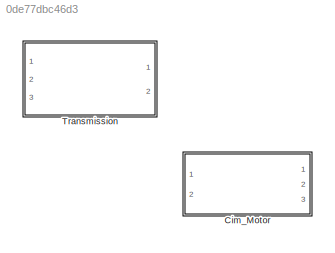
MODEL slx_0de77dbc46d3
KIND library
CONFIG AbsTol = auto
CONFIG EnableMultiTasking = off
CONFIG FixedStep = auto
CONFIG MaxStep = auto
CONFIG MinStep = auto
CONFIG RelTol = 1e-3
CONFIG SampleTimeConstraint = Unconstrained
CONFIG Solver = VariableStepAuto
CONFIG SolverName = VariableStepAuto
CONFIG StartTime = 0.0
CONFIG StopTime = 10.0
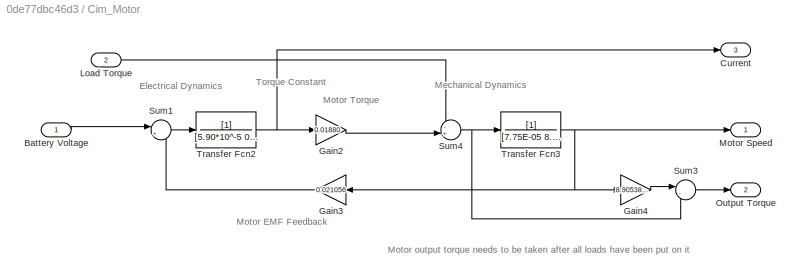
BLOCK [SubSystem] Cim_Motor
  Ports = [2, 3]
  RequestExecContextInheritance = off
BLOCK [Inport] Cim_Motor/Battery Voltage
  IconDisplay = Port number
BLOCK [Outport] Cim_Motor/Current
  IconDisplay = Port number
  Port = 3
BLOCK [Gain] Cim_Motor/Gain2
  Gain = 0.01880
  OutDataTypeStr = Inherit: Inherit via internal rule
  ParamDataTypeStr = Inherit: Inherit via internal rule
  SaturateOnIntegerOverflow = off
BLOCK [Gain] Cim_Motor/Gain3
  Gain = 0.021056
  OutDataTypeStr = Inherit: Inherit via internal rule
  ParamDataTypeStr = Inherit: Inherit via internal rule
  SaturateOnIntegerOverflow = off
BLOCK [Gain] Cim_Motor/Gain4
  Gain = 8.90538*10^-5
  OutDataTypeStr = Inherit: Inherit via internal rule
  ParamDataTypeStr = Inherit: Inherit via internal rule
  SaturateOnIntegerOverflow = off
BLOCK [Inport] Cim_Motor/Load Torque
  IconDisplay = Port number
  Port = 2
BLOCK [Outport] Cim_Motor/Motor Speed
  IconDisplay = Port number
BLOCK [Outport] Cim_Motor/Output Torque
  IconDisplay = Port number
  Port = 2
BLOCK [Sum] Cim_Motor/Sum1
  IconShape = round
  InputSameDT = off
  Inputs = |+-
  OutDataTypeStr = Inherit: Inherit via internal rule
  Ports = [2, 1]
  SaturateOnIntegerOverflow = off
BLOCK [Sum] Cim_Motor/Sum3
  IconShape = round
  InputSameDT = off
  Inputs = |-+
  OutDataTypeStr = Inherit: Inherit via internal rule
  Ports = [2, 1]
  SaturateOnIntegerOverflow = off
BLOCK [Sum] Cim_Motor/Sum4
  IconShape = round
  InputSameDT = off
  Inputs = -+|
  OutDataTypeStr = Inherit: Inherit via internal rule
  Ports = [2, 1]
  SaturateOnIntegerOverflow = off
BLOCK [TransferFcn] Cim_Motor/Transfer Fcn2
  Denominator = [5.90*10^-5 0.091565]
BLOCK [TransferFcn] Cim_Motor/Transfer Fcn3
  Denominator = [7.75E-05\n 8.90538*10^-5]
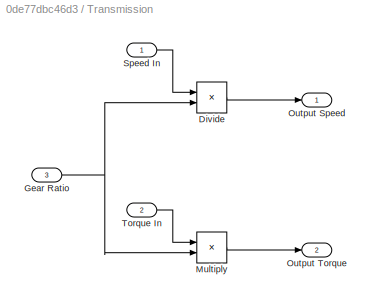
BLOCK [SubSystem] Transmission
  Ports = [3, 2]
  RequestExecContextInheritance = off
BLOCK [Product] Transmission/Divide
  InputSameDT = off
  Inputs = */
  OutDataTypeStr = Inherit: Inherit via internal rule
  Ports = [2, 1]
  RndMeth = Floor
  SaturateOnIntegerOverflow = off
BLOCK [Inport] Transmission/Gear Ratio
  IconDisplay = Port number
  Port = 3
BLOCK [Product] Transmission/Multiply
  InputSameDT = off
  OutDataTypeStr = Inherit: Inherit via internal rule
  Ports = [2, 1]
  RndMeth = Floor
  SaturateOnIntegerOverflow = off
BLOCK [Outport] Transmission/Output Speed 
  IconDisplay = Port number
BLOCK [Outport] Transmission/Output Torque 
  IconDisplay = Port number
  Port = 2
BLOCK [Inport] Transmission/Speed In 
  IconDisplay = Port number
BLOCK [Inport] Transmission/Torque In
  IconDisplay = Port number
  Port = 2
ANNOTATION Cim_Motor: Electrical Dynamics
ANNOTATION Cim_Motor: Mechanical Dynamics
ANNOTATION Cim_Motor: Motor EMF Feedback
ANNOTATION Cim_Motor: Motor Torque
ANNOTATION Cim_Motor: Motor output torque needs to be taken after all loads have been put on it
ANNOTATION Cim_Motor: Torque Constant
LINE Cim_Motor/Battery Voltage:1 -> Cim_Motor/Sum1:1
LINE Cim_Motor/Gain2:1 -> Cim_Motor/Sum4:2
LINE Cim_Motor/Gain3:1 -> Cim_Motor/Sum1:2
LINE Cim_Motor/Gain4:1 -> Cim_Motor/Sum3:1
LINE Cim_Motor/Load Torque:1 -> Cim_Motor/Sum4:1
LINE Cim_Motor/Sum1:1 -> Cim_Motor/Transfer Fcn2:1
LINE Cim_Motor/Sum3:1 -> Cim_Motor/Output Torque:1
NET Cim_Motor/Sum4:1 -> Cim_Motor/Sum3:2, Cim_Motor/Transfer Fcn3:1
NET Cim_Motor/Transfer Fcn2:1 -> Cim_Motor/Current:1, Cim_Motor/Gain2:1
NET Cim_Motor/Transfer Fcn3:1 -> Cim_Motor/Gain3:1, Cim_Motor/Gain4:1, Cim_Motor/Motor Speed:1
LINE Transmission/Divide:1 -> Transmission/Output Speed :1
NET Transmission/Gear Ratio:1 -> Transmission/Divide:2, Transmission/Multiply:2
LINE Transmission/Multiply:1 -> Transmission/Output Torque :1
LINE Transmission/Speed In :1 -> Transmission/Divide:1
LINE Transmission/Torque In:1 -> Transmission/Multiply:1
note: NET lines group one-source signal fan-out (src -> all destinations, sorted); 1:1 wires keep LINE
